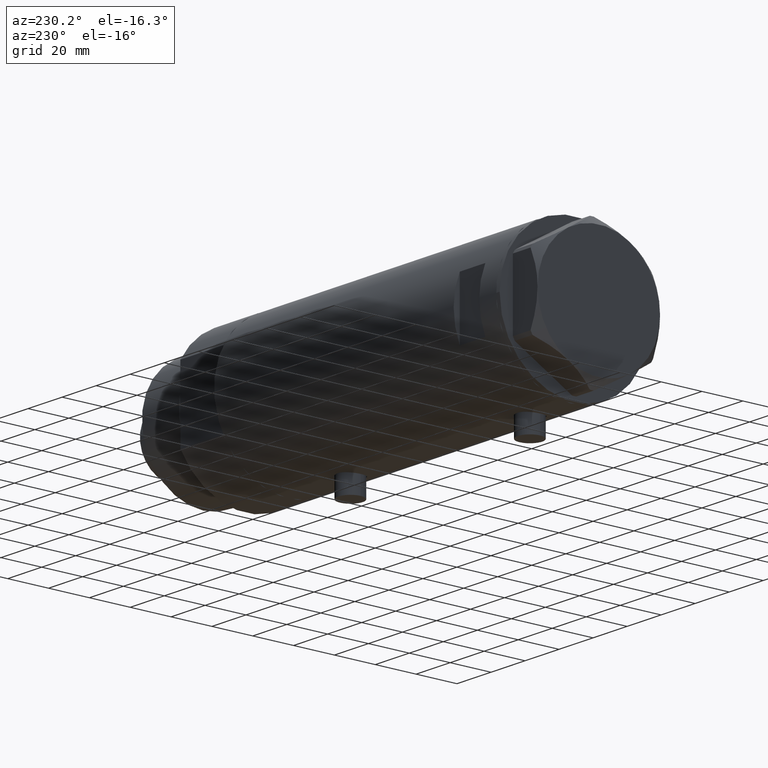
[diagram: clean part render]
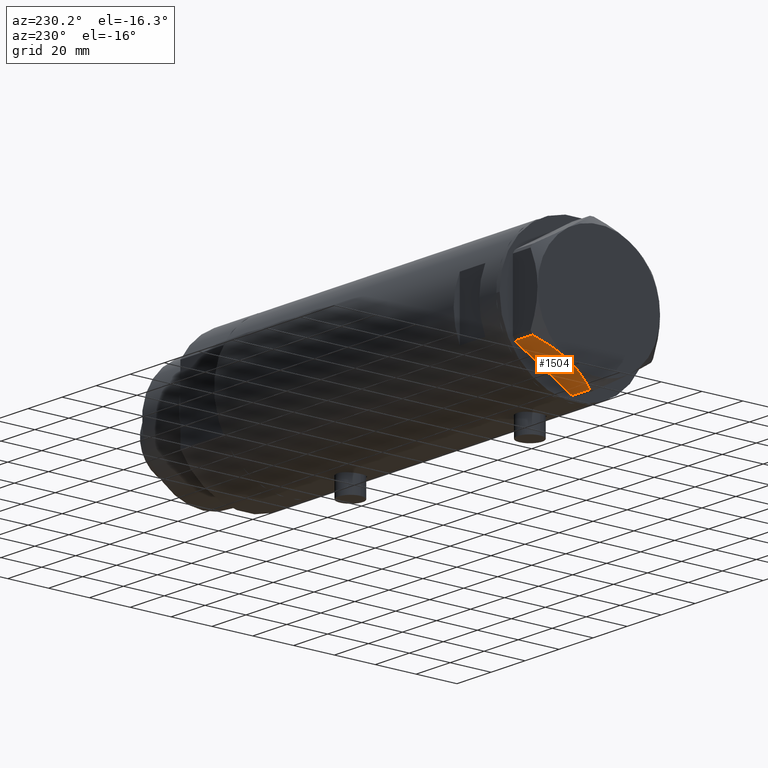
[diagram: same view with one face highlighted and labeled with its STEP entity id]
A machine part, auxiliary view. The second image highlights one B-rep face of the part: STEP entity #1504.
In plain terms, the highlighted planar face has unit normal (0, -0.5, 0.866).
Its self-contained STEP definition (entity closure, byte-faithful):
#235 = CARTESIAN_POINT ( 'NONE',  ( 29.99999999999999289, 17.32050807568878170, 0.000000000000000000 ) ) ;
#294 = CARTESIAN_POINT ( 'NONE',  ( 14.99999999999999467, 25.98076211353316367, 14.50000000000000000 ) ) ;
#470 = DIRECTION ( 'NONE',  ( 0.8660254037844387076, -0.4999999999999997780, 0.000000000000000000 ) ) ;
#484 = EDGE_CURVE ( 'NONE', #3380, #3126, #1259, .T. ) ;
#575 = LINE ( 'NONE', #235, #2466 ) ;
#665 = CARTESIAN_POINT ( 'NONE',  ( 5.477433827014328571, 31.47861825688246640, 12.55468001512311105 ) ) ;
#687 = CARTESIAN_POINT ( 'NONE',  ( 7.227334865373877371, 30.46831242133036355, 13.19311392138218508 ) ) ;
#802 = ORIENTED_EDGE ( 'NONE', *, *, #3451, .T. ) ;
#934 = CARTESIAN_POINT ( 'NONE',  ( 29.03005154776155194, 17.88050807568870226, 10.40518423703596085 ) ) ;
#958 = CARTESIAN_POINT ( 'NONE',  ( 6.639151835535789026, 30.80790005194015535, 12.99122625442314671 ) ) ;
#996 = CARTESIAN_POINT ( 'NONE',  ( 17.45962150578836258, 24.56069897506165489, 14.37423503257921986 ) ) ;
#1024 = CARTESIAN_POINT ( 'NONE',  ( 14.99999999999999467, 25.98076211353316367, 14.50000000000000000 ) ) ;
#1090 = ORIENTED_EDGE ( 'NONE', *, *, #484, .F. ) ;
#1259 = B_SPLINE_CURVE_WITH_KNOTS ( 'NONE', 3,
 ( #1024, #4381, #2415, #687, #958, #665, #2071, #4401, #1996, #3005 ),
 .UNSPECIFIED., .F., .F.,
 ( 4, 2, 2, 2, 4 ),
 ( 0.01795453117522811601, 0.02625795893839555362, 0.02833381587918740868, 0.03040967281997927762, 0.03456138670156298776 ),
 .UNSPECIFIED. ) ;
#1359 = CARTESIAN_POINT ( 'NONE',  ( 18.07068105770096267, 24.20790357827400996, 14.29910535634586743 ) ) ;
#1386 = LINE ( 'NONE', #1719, #2024 ) ;
#1412 = FACE_OUTER_BOUND ( 'NONE', #4083, .T. ) ;
#1414 = VERTEX_POINT ( 'NONE', #3091 ) ;
#1504 = ADVANCED_FACE ( 'NONE', ( #1412 ), #2471, .F. ) ;
#1505 = VERTEX_POINT ( 'NONE', #2800 ) ;
#1675 = CARTESIAN_POINT ( 'NONE',  ( 26.82462797925471065, 19.15380996664327284, 11.61522964162834981 ) ) ;
#1719 = CARTESIAN_POINT ( 'NONE',  ( 0.9699484522385712904, 34.08101615137753981, 14.50000000000000000 ) ) ;
#1768 = CARTESIAN_POINT ( 'NONE',  ( 29.99999999999999289, 17.32050807568878170, 14.50000000000000000 ) ) ;
#1795 = CARTESIAN_POINT ( 'NONE',  ( 0.9699484522423541533, 34.08101615137535845, 10.40518423703812090 ) ) ;
#1907 = LINE ( 'NONE', #1969, #4256 ) ;
#1909 = VERTEX_POINT ( 'NONE', #4263 ) ;
#1969 = CARTESIAN_POINT ( 'NONE',  ( 29.03005154776139207, 17.88050807568879463, 14.50000000000000000 ) ) ;
#1996 = CARTESIAN_POINT ( 'NONE',  ( 2.073315687469442281, 33.44398678110199086, 11.01056656432865388 ) ) ;
#2024 = VECTOR ( 'NONE', #3152, 1000.000000000000000 ) ;
#2071 = CARTESIAN_POINT ( 'NONE',  ( 4.902385341345770975, 31.81062265488028018, 12.31959434659136576 ) ) ;
#2324 = CARTESIAN_POINT ( 'NONE',  ( 15.61187731150015878, 25.62749458302751293, 14.50000000000000355 ) ) ;
#2384 = CARTESIAN_POINT ( 'NONE',  ( 16.22616138060133295, 25.27283751037305493, 14.47500996539161555 ) ) ;
#2415 = CARTESIAN_POINT ( 'NONE',  ( 10.17780078270602040, 28.76486012972386064, 14.10092492974158773 ) ) ;
#2431 = EDGE_CURVE ( 'NONE', #1414, #1909, #1907, .T. ) ;
#2466 = VECTOR ( 'NONE', #4368, 1000.000000000000227 ) ;
#2471 = PLANE ( 'NONE',  #2532 ) ;
#2496 = DIRECTION ( 'NONE',  ( -0.4999999999999998335, -0.8660254037844388186, 0.000000000000000000 ) ) ;
#2532 = AXIS2_PLACEMENT_3D ( 'NONE', #1768, #2496, #470 ) ;
#2800 = CARTESIAN_POINT ( 'NONE',  ( 0.9699484522385712904, 34.08101615137753981, 0.000000000000000000 ) ) ;
#2948 = EDGE_CURVE ( 'NONE', #1909, #1505, #575, .T. ) ;
#3005 = CARTESIAN_POINT ( 'NONE',  ( 0.9699484522423541533, 34.08101615137535845, 10.40518423703812090 ) ) ;
#3065 = CARTESIAN_POINT ( 'NONE',  ( 24.56959650245796567, 20.45575299680294634, 12.63511531451932690 ) ) ;
#3091 = CARTESIAN_POINT ( 'NONE',  ( 29.03005154776155194, 17.88050807568870226, 10.40518423703596085 ) ) ;
#3126 = VERTEX_POINT ( 'NONE', #1795 ) ;
#3152 = DIRECTION ( 'NONE',  ( 0.000000000000000000, 0.000000000000000000, 1.000000000000000000 ) ) ;
#3256 = ORIENTED_EDGE ( 'NONE', *, *, #3392, .F. ) ;
#3380 = VERTEX_POINT ( 'NONE', #294 ) ;
#3392 = EDGE_CURVE ( 'NONE', #1414, #3380, #3586, .T. ) ;
#3451 = EDGE_CURVE ( 'NONE', #1505, #3126, #1386, .T. ) ;
#3458 = ORIENTED_EDGE ( 'NONE', *, *, #2431, .T. ) ;
#3586 = B_SPLINE_CURVE_WITH_KNOTS ( 'NONE', 3,
 ( #934, #1675, #3065, #4095, #4460, #1359, #996, #2384, #2324, #3696 ),
 .UNSPECIFIED., .F., .F.,
 ( 4, 2, 2, 2, 4 ),
 ( 0.001230196178133409956, 0.009592363676680764825, 0.01377344742595444649, 0.01586398930059127951, 0.01795453117522811601 ),
 .UNSPECIFIED. ) ;
#3696 = CARTESIAN_POINT ( 'NONE',  ( 14.99999999999999467, 25.98076211353316367, 14.50000000000000000 ) ) ;
#3772 = ORIENTED_EDGE ( 'NONE', *, *, #2948, .T. ) ;
#4039 = DIRECTION ( 'NONE',  ( 0.000000000000000000, 0.000000000000000000, -1.000000000000000000 ) ) ;
#4083 = EDGE_LOOP ( 'NONE', ( #3256, #3458, #3772, #802, #1090 ) ) ;
#4095 = CARTESIAN_POINT ( 'NONE',  ( 21.07077273125423034, 22.47579984295449407, 13.71922620632299505 ) ) ;
#4256 = VECTOR ( 'NONE', #4039, 1000.000000000000000 ) ;
#4263 = CARTESIAN_POINT ( 'NONE',  ( 29.03005154776139207, 17.88050807568879463, 0.000000000000000000 ) ) ;
#4368 = DIRECTION ( 'NONE',  ( -0.8660254037844387076, 0.4999999999999997780, 0.000000000000000000 ) ) ;
#4381 = CARTESIAN_POINT ( 'NONE',  ( 12.56968319190193029, 27.38390617690464879, 14.50000000000000711 ) ) ;
#4401 = CARTESIAN_POINT ( 'NONE',  ( 3.192653970408704023, 32.79773652213274460, 11.56973717813891156 ) ) ;
#4460 = CARTESIAN_POINT ( 'NONE',  ( 19.88494945387372681, 23.16043523136144699, 14.00566141361760941 ) ) ;